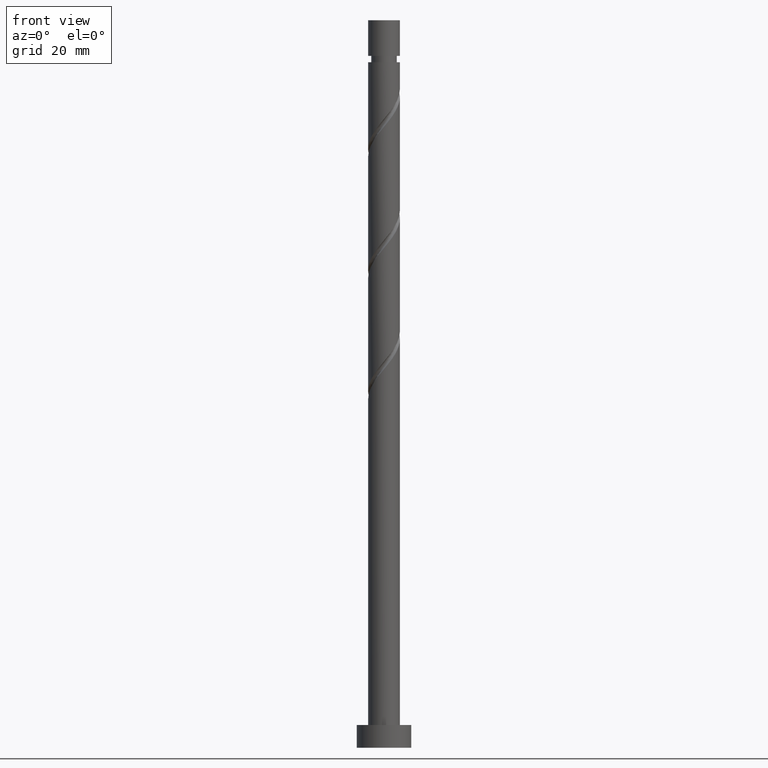
[diagram: clean part render]
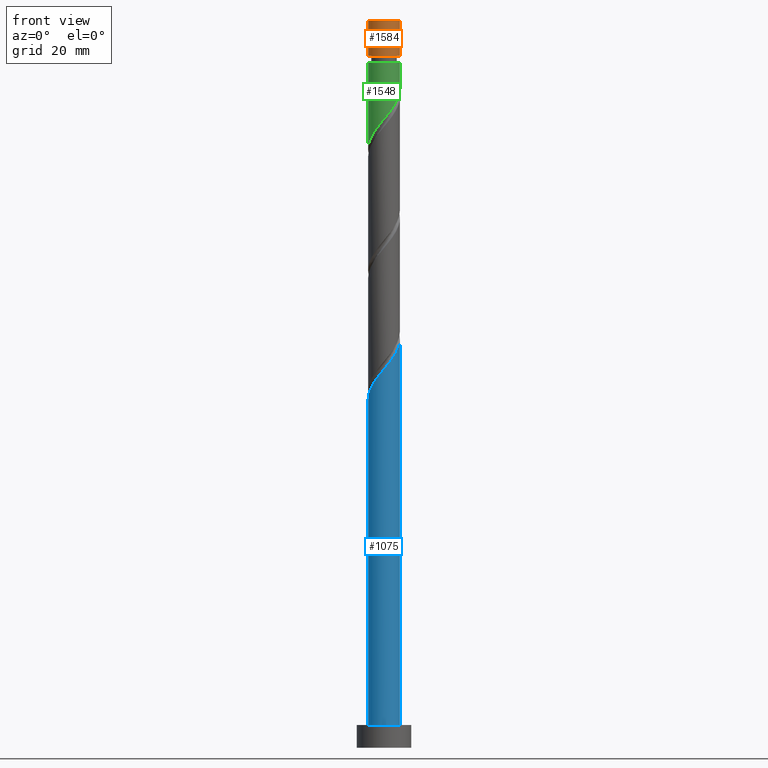
[diagram: same view with three faces highlighted in distinct colors, each labeled with its STEP entity id]
A machine part, front view with three faces highlighted in distinct colors.
Their STEP definitions:

[orange] entity #1584 — the highlighted cylindrical surface (edge-blend (fillet) strip) has radius 3.5 mm, axis along (-0, -0, -1).
#26 = VERTEX_POINT ( 'NONE', #1416 ) ;
#73 = DIRECTION ( 'NONE',  ( -0.000000000000000000, -0.000000000000000000, -1.000000000000000000 ) ) ;
#139 = DIRECTION ( 'NONE',  ( 0.000000000000000000, 0.000000000000000000, 1.000000000000000000 ) ) ;
#141 = ORIENTED_EDGE ( 'NONE', *, *, #336, .F. ) ;
#148 = DIRECTION ( 'NONE',  ( 1.000000000000000000, 0.000000000000000000, 0.000000000000000000 ) ) ;
#153 = AXIS2_PLACEMENT_3D ( 'NONE', #466, #480, #984 ) ;
#191 = VERTEX_POINT ( 'NONE', #794 ) ;
#223 = FACE_OUTER_BOUND ( 'NONE', #401, .T. ) ;
#267 = LINE ( 'NONE', #403, #314 ) ;
#277 = EDGE_CURVE ( 'NONE', #1434, #26, #567, .T. ) ;
#314 = VECTOR ( 'NONE', #1091, 1000.000000000000000 ) ;
#323 = VERTEX_POINT ( 'NONE', #1581 ) ;
#336 = EDGE_CURVE ( 'NONE', #323, #191, #267, .T. ) ;
#394 = CARTESIAN_POINT ( 'NONE',  ( -3.500000000000000000, 0.000000000000000000, 160.0000000000000000 ) ) ;
#401 = EDGE_LOOP ( 'NONE', ( #141, #456, #569, #1063 ) ) ;
#403 = CARTESIAN_POINT ( 'NONE',  ( 3.500000000000000000, 4.286263797015736595E-16, 160.0000000000000000 ) ) ;
#413 = EDGE_CURVE ( 'NONE', #191, #26, #1061, .T. ) ;
#456 = ORIENTED_EDGE ( 'NONE', *, *, #999, .F. ) ;
#466 = CARTESIAN_POINT ( 'NONE',  ( 0.000000000000000000, 0.000000000000000000, 160.0000000000000000 ) ) ;
#480 = DIRECTION ( 'NONE',  ( -0.000000000000000000, -0.000000000000000000, -1.000000000000000000 ) ) ;
#524 = DIRECTION ( 'NONE',  ( -0.000000000000000000, -0.000000000000000000, -1.000000000000000000 ) ) ;
#567 = LINE ( 'NONE', #394, #871 ) ;
#569 = ORIENTED_EDGE ( 'NONE', *, *, #277, .T. ) ;
#577 = CARTESIAN_POINT ( 'NONE',  ( 0.000000000000000000, 0.000000000000000000, 152.1742673228375224 ) ) ;
#594 = CARTESIAN_POINT ( 'NONE',  ( -3.500000000000000000, 0.000000000000000000, 160.0000000000000000 ) ) ;
#738 = AXIS2_PLACEMENT_3D ( 'NONE', #1315, #139, #148 ) ;
#761 = AXIS2_PLACEMENT_3D ( 'NONE', #577, #73, #1245 ) ;
#794 = CARTESIAN_POINT ( 'NONE',  ( 3.499999999999993783, 4.286263797015732651E-16, 152.1742673228375224 ) ) ;
#871 = VECTOR ( 'NONE', #524, 1000.000000000000000 ) ;
#984 = DIRECTION ( 'NONE',  ( -1.000000000000000000, 0.000000000000000000, 0.000000000000000000 ) ) ;
#999 = EDGE_CURVE ( 'NONE', #1434, #323, #1242, .T. ) ;
#1061 = CIRCLE ( 'NONE', #761, 3.499999999999993783 ) ;
#1063 = ORIENTED_EDGE ( 'NONE', *, *, #413, .F. ) ;
#1091 = DIRECTION ( 'NONE',  ( -0.000000000000000000, -0.000000000000000000, -1.000000000000000000 ) ) ;
#1242 = CIRCLE ( 'NONE', #738, 3.500000000000000000 ) ;
#1245 = DIRECTION ( 'NONE',  ( -1.000000000000000000, 0.000000000000000000, 0.000000000000000000 ) ) ;
#1315 = CARTESIAN_POINT ( 'NONE',  ( 0.000000000000000000, 0.000000000000000000, 160.0000000000000000 ) ) ;
#1373 = CYLINDRICAL_SURFACE ( 'NONE', #153, 3.500000000000000000 ) ;
#1416 = CARTESIAN_POINT ( 'NONE',  ( -3.499999999999993783, 0.000000000000000000, 152.1742673228375224 ) ) ;
#1434 = VERTEX_POINT ( 'NONE', #594 ) ;
#1581 = CARTESIAN_POINT ( 'NONE',  ( 3.500000000000000000, 4.286263797015736595E-16, 160.0000000000000000 ) ) ;
#1584 = ADVANCED_FACE ( 'NONE', ( #223 ), #1373, .T. ) ;

[blue] entity #1075 — the highlighted cylindrical surface (edge-blend (fillet) strip) has radius 3.5 mm, axis along (-0, -0, -1).
#21 = LINE ( 'NONE', #39, #1035 ) ;
#27 = CARTESIAN_POINT ( 'NONE',  ( 0.000000000000000000, 0.000000000000000000, 160.0000000000000000 ) ) ;
#39 = CARTESIAN_POINT ( 'NONE',  ( -3.500000000000000000, 0.000000000000000000, 160.0000000000000000 ) ) ;
#95 = CARTESIAN_POINT ( 'NONE',  ( 1.634621088283054080, -3.094836651220926438, 85.31972186829203508 ) ) ;
#104 = CARTESIAN_POINT ( 'NONE',  ( 3.500000000000005329, -0.4008512458479296381, 89.43885289056527199 ) ) ;
#171 = DIRECTION ( 'NONE',  ( 0.000000000000000000, 0.000000000000000000, 1.000000000000000000 ) ) ;
#183 = EDGE_CURVE ( 'NONE', #1474, #952, #552, .T. ) ;
#225 = CARTESIAN_POINT ( 'NONE',  ( 0.6964912059746342088, -3.430000000000004601, 84.10760065617081693 ) ) ;
#245 = EDGE_CURVE ( 'NONE', #1508, #1474, #21, .T. ) ;
#275 = DIRECTION ( 'NONE',  ( 1.000000000000000000, 0.000000000000000000, 0.000000000000000000 ) ) ;
#301 = ORIENTED_EDGE ( 'NONE', *, *, #245, .T. ) ;
#313 = VERTEX_POINT ( 'NONE', #1058 ) ;
#338 = CARTESIAN_POINT ( 'NONE',  ( 3.409370647451654968, -0.7913228091588905277, 88.95608550465567532 ) ) ;
#347 = CARTESIAN_POINT ( 'NONE',  ( -2.534748123757052163, -2.465418092830388375, 79.86517641374659604 ) ) ;
#352 = CARTESIAN_POINT ( 'NONE',  ( -3.494208578988649894, -0.2012620344778339176, 76.83487338344353645 ) ) ;
#361 = CARTESIAN_POINT ( 'NONE',  ( 2.079591422188716621, -2.859813619819381980, 85.92578247435265837 ) ) ;
#443 = LINE ( 'NONE', #957, #1655 ) ;
#518 =( BOUNDED_CURVE ( )  B_SPLINE_CURVE ( 2, ( #1606, #959, #352, #1631, #863, #601, #1377, #347, #715, #1389, #1496, #725, #858, #990, #225, #1638, #95, #361, #869, #1112, #978, #615, #338, #104, #1397 ),
 .UNSPECIFIED., .F., .T. ) 
 B_SPLINE_CURVE_WITH_KNOTS ( ( 3, 2, 2, 2, 2, 2, 2, 2, 2, 2, 2, 2, 3 ),
 ( 0.05452521624175145354, 0.05681818181818176772, 0.06818181818181823228, 0.07954545454545458583, 0.09090909090909093937, 0.1022727272727272929, 0.1136363636363636465, 0.1250000000000000000, 0.1363636363636363535, 0.1477272727272727071, 0.1590909090909090606, 0.1704545454545454142, 0.1795252162417513286 ),
 .UNSPECIFIED. ) 
 CURVE ( )  GEOMETRIC_REPRESENTATION_ITEM ( )  RATIONAL_B_SPLINE_CURVE ( ( 0.9061101570135636774, 0.9072237824201458967, 0.9090909090909231605, 0.8998376744372253988, 0.9090909090909231605, 0.8998376744372253988, 0.9090909090909231605, 0.8998376744372253988, 0.9090909090909231605, 0.8998376744372253988, 0.9090909090909231605, 0.8998376744372253988, 0.9090909090909231605, 0.8998376744372253988, 0.9090909090909231605, 0.8998376744372253988, 0.9090909090909231605, 0.8998376744372253988, 0.9090909090909231605, 0.8998376744372253988, 0.9090909090909231605, 0.8998376744372253988, 0.9090909090909231605, 0.9017048011080028846, 0.9061101570135635663 ) ) 
 REPRESENTATION_ITEM ( '' )  );
#552 = CIRCLE ( 'NONE', #1265, 3.500000000000000000 ) ;
#555 = ORIENTED_EDGE ( 'NONE', *, *, #1279, .F. ) ;
#575 = EDGE_LOOP ( 'NONE', ( #555, #1227, #301, #967 ) ) ;
#585 = AXIS2_PLACEMENT_3D ( 'NONE', #27, #752, #1015 ) ;
#601 = CARTESIAN_POINT ( 'NONE',  ( -3.126661557603648944, -1.651430267237721239, 78.65305520162536368 ) ) ;
#615 = CARTESIAN_POINT ( 'NONE',  ( 3.295595603951480879, -1.281516304446027377, 88.35002489859503783 ) ) ;
#653 = CARTESIAN_POINT ( 'NONE',  ( -3.500000000000000000, 0.000000000000000000, 5.000000000000000000 ) ) ;
#715 = CARTESIAN_POINT ( 'NONE',  ( -2.136116297704123923, -2.772545249889144525, 80.47123701980717669 ) ) ;
#725 = CARTESIAN_POINT ( 'NONE',  ( -0.7994601608701867868, -3.444429978171531737, 82.28941883798901813 ) ) ;
#752 = DIRECTION ( 'NONE',  ( -0.000000000000000000, -0.000000000000000000, -1.000000000000000000 ) ) ;
#791 = EDGE_CURVE ( 'NONE', #1508, #313, #518, .T. ) ;
#858 = CARTESIAN_POINT ( 'NONE',  ( -0.2980642516491556204, -3.487285147774535243, 82.89547944404961299 ) ) ;
#863 = CARTESIAN_POINT ( 'NONE',  ( -3.295966512314560060, -1.177541825032570877, 78.04699459556476882 ) ) ;
#869 = CARTESIAN_POINT ( 'NONE',  ( 2.440323691484713731, -2.508948042662193956, 86.53184308041322481 ) ) ;
#952 = VERTEX_POINT ( 'NONE', #1546 ) ;
#957 = CARTESIAN_POINT ( 'NONE',  ( 3.500000000000000000, 4.286263797015736595E-16, 160.0000000000000000 ) ) ;
#959 = CARTESIAN_POINT ( 'NONE',  ( -3.500000000000003997, -0.1007143428333848734, 76.71357751492148225 ) ) ;
#967 = ORIENTED_EDGE ( 'NONE', *, *, #183, .T. ) ;
#978 = CARTESIAN_POINT ( 'NONE',  ( 3.048325782366095194, -1.719799384975517542, 87.74396429253444296 ) ) ;
#990 = CARTESIAN_POINT ( 'NONE',  ( 0.2033316575718754626, -3.530140317377540082, 83.50154005011020786 ) ) ;
#1015 = DIRECTION ( 'NONE',  ( -1.000000000000000000, 0.000000000000000000, 0.000000000000000000 ) ) ;
#1035 = VECTOR ( 'NONE', #1347, 1000.000000000000000 ) ;
#1058 = CARTESIAN_POINT ( 'NONE',  ( 3.500000000000004885, 1.929429870751030982E-15, 89.92481284353658566 ) ) ;
#1075 = ADVANCED_FACE ( 'NONE', ( #1537 ), #1565, .T. ) ;
#1112 = CARTESIAN_POINT ( 'NONE',  ( 2.801055960780711729, -2.158082465505006819, 87.13790368647386231 ) ) ;
#1227 = ORIENTED_EDGE ( 'NONE', *, *, #791, .F. ) ;
#1265 = AXIS2_PLACEMENT_3D ( 'NONE', #1335, #171, #275 ) ;
#1279 = EDGE_CURVE ( 'NONE', #313, #952, #443, .T. ) ;
#1335 = CARTESIAN_POINT ( 'NONE',  ( 0.000000000000000000, 0.000000000000000000, 5.000000000000000000 ) ) ;
#1347 = DIRECTION ( 'NONE',  ( -0.000000000000000000, -0.000000000000000000, -1.000000000000000000 ) ) ;
#1377 = CARTESIAN_POINT ( 'NONE',  ( -2.830704840680350554, -2.058424180034053919, 79.25911580768597275 ) ) ;
#1389 = CARTESIAN_POINT ( 'NONE',  ( -1.737484471651196571, -3.079672406947902896, 81.07729762586779998 ) ) ;
#1397 = CARTESIAN_POINT ( 'NONE',  ( 3.500000000000004885, 1.929429870751030982E-15, 89.92481284353657145 ) ) ;
#1417 = CARTESIAN_POINT ( 'NONE',  ( -3.500000000000004885, -2.093954898489490658E-15, 76.59147951020327127 ) ) ;
#1462 = DIRECTION ( 'NONE',  ( -0.000000000000000000, -0.000000000000000000, -1.000000000000000000 ) ) ;
#1474 = VERTEX_POINT ( 'NONE', #653 ) ;
#1496 = CARTESIAN_POINT ( 'NONE',  ( -1.268472316260691901, -3.262051192559717538, 81.68335823192840905 ) ) ;
#1508 = VERTEX_POINT ( 'NONE', #1417 ) ;
#1537 = FACE_OUTER_BOUND ( 'NONE', #575, .T. ) ;
#1546 = CARTESIAN_POINT ( 'NONE',  ( 3.500000000000000000, 4.286263797015736595E-16, 5.000000000000000000 ) ) ;
#1565 = CYLINDRICAL_SURFACE ( 'NONE', #585, 3.500000000000000000 ) ;
#1606 = CARTESIAN_POINT ( 'NONE',  ( -3.500000000000004441, -2.093954898489490658E-15, 76.59147951020328549 ) ) ;
#1631 = CARTESIAN_POINT ( 'NONE',  ( -3.465271467025468954, -0.7036533828274216251, 77.44093398950417395 ) ) ;
#1638 = CARTESIAN_POINT ( 'NONE',  ( 1.189650754377393538, -3.329859682622472228, 84.71366126223144022 ) ) ;
#1655 = VECTOR ( 'NONE', #1462, 1000.000000000000000 ) ;

[green] entity #1548 — the highlighted cylindrical surface (edge-blend (fillet) strip) has radius 3.5 mm, axis along (-0, -0, -1).
#28 = EDGE_LOOP ( 'NONE', ( #159, #692, #1332, #1212 ) ) ;
#54 = DIRECTION ( 'NONE',  ( -0.000000000000000000, -0.000000000000000000, -1.000000000000000000 ) ) ;
#77 = CARTESIAN_POINT ( 'NONE',  ( 0.7994601608701855655, -3.444429978171526852, 139.2591158076860154 ) ) ;
#102 = CARTESIAN_POINT ( 'NONE',  ( 1.737484471651192131, -3.079672406947899344, 140.4712370198071767 ) ) ;
#115 = CARTESIAN_POINT ( 'NONE',  ( -3.500000000000000444, -1.809775305123072608E-15, 131.6237218021383910 ) ) ;
#123 = EDGE_CURVE ( 'NONE', #675, #948, #945, .T. ) ;
#136 = CARTESIAN_POINT ( 'NONE',  ( -3.295595603951475105, -1.281516304446025156, 133.1985097470799246 ) ) ;
#145 = CARTESIAN_POINT ( 'NONE',  ( -3.500000000000000444, -0.4008512458479260299, 132.1096817551096763 ) ) ;
#159 = ORIENTED_EDGE ( 'NONE', *, *, #123, .F. ) ;
#165 = DIRECTION ( 'NONE',  ( -0.000000000000000000, -0.000000000000000000, -1.000000000000000000 ) ) ;
#199 = CARTESIAN_POINT ( 'NONE',  ( 3.295966512314554286, -1.177541825032570655, 143.5015400501102079 ) ) ;
#210 = CARTESIAN_POINT ( 'NONE',  ( -1.189650754377393094, -3.329859682622465566, 136.8348733834435507 ) ) ;
#260 = FACE_OUTER_BOUND ( 'NONE', #28, .T. ) ;
#326 = CARTESIAN_POINT ( 'NONE',  ( 2.534748123757049498, -2.465418092830384378, 141.6833582319283948 ) ) ;
#349 = CARTESIAN_POINT ( 'NONE',  ( 0.000000000000000000, 0.000000000000000000, 150.7742673228374883 ) ) ;
#360 = CARTESIAN_POINT ( 'NONE',  ( 3.494208578988645009, -0.2012620344778351111, 144.7136612622313976 ) ) ;
#369 = CARTESIAN_POINT ( 'NONE',  ( 3.499999999999993783, 4.286263797015732158E-16, 150.7742673228374883 ) ) ;
#494 = EDGE_CURVE ( 'NONE', #675, #867, #1472, .T. ) ;
#589 = CARTESIAN_POINT ( 'NONE',  ( 0.2980642516491536220, -3.487285147774530802, 138.6530552016253921 ) ) ;
#598 = DIRECTION ( 'NONE',  ( -1.000000000000000000, 0.000000000000000000, 0.000000000000000000 ) ) ;
#600 = CARTESIAN_POINT ( 'NONE',  ( -1.634621088283053414, -3.094836651220921553, 136.2288127773829274 ) ) ;
#619 = CARTESIAN_POINT ( 'NONE',  ( -3.500000000000000444, -1.809775305123072608E-15, 131.6237218021383910 ) ) ;
#663 = VERTEX_POINT ( 'NONE', #619 ) ;
#675 = VERTEX_POINT ( 'NONE', #369 ) ;
#692 = ORIENTED_EDGE ( 'NONE', *, *, #494, .T. ) ;
#713 = CARTESIAN_POINT ( 'NONE',  ( 3.126661557603643171, -1.651430267237719018, 142.8954794440496414 ) ) ;
#746 = CARTESIAN_POINT ( 'NONE',  ( -3.499999999999993783, 0.000000000000000000, 150.7742673228374883 ) ) ;
#773 = CYLINDRICAL_SURFACE ( 'NONE', #1442, 3.500000000000000000 ) ;
#856 = CARTESIAN_POINT ( 'NONE',  ( 3.500000000000000444, 1.121761552762235337E-15, 144.9570551354716770 ) ) ;
#867 = VERTEX_POINT ( 'NONE', #746 ) ;
#868 = CARTESIAN_POINT ( 'NONE',  ( 3.465271467025464069, -0.7036533828274222913, 144.1076006561708880 ) ) ;
#899 = VECTOR ( 'NONE', #1369, 1000.000000000000000 ) ;
#945 = LINE ( 'NONE', #1318, #1523 ) ;
#948 = VERTEX_POINT ( 'NONE', #1522 ) ;
#985 = CARTESIAN_POINT ( 'NONE',  ( -3.500000000000000000, 0.000000000000000000, 160.0000000000000000 ) ) ;
#1019 = CARTESIAN_POINT ( 'NONE',  ( -3.409370647451650083, -0.7913228091588887514, 132.5924491410193014 ) ) ;
#1053 = DIRECTION ( 'NONE',  ( -1.000000000000000000, 0.000000000000000000, 0.000000000000000000 ) ) ;
#1110 = CARTESIAN_POINT ( 'NONE',  ( -0.2033316575718766839, -3.530140317377535197, 138.0469945955647404 ) ) ;
#1115 = DIRECTION ( 'NONE',  ( -0.000000000000000000, -0.000000000000000000, -1.000000000000000000 ) ) ;
#1123 = CARTESIAN_POINT ( 'NONE',  ( -2.801055960780707732, -2.158082465505001935, 134.4106309592011144 ) ) ;
#1212 = ORIENTED_EDGE ( 'NONE', *, *, #1456, .F. ) ;
#1240 = CARTESIAN_POINT ( 'NONE',  ( 2.136116297704119482, -2.772545249889141861, 141.0772976258678284 ) ) ;
#1246 = CARTESIAN_POINT ( 'NONE',  ( -2.079591422188713512, -2.859813619819377095, 135.6227521713223325 ) ) ;
#1271 = CARTESIAN_POINT ( 'NONE',  ( 1.268472316260688793, -3.262051192559713098, 139.8651764137466387 ) ) ;
#1313 = CARTESIAN_POINT ( 'NONE',  ( -3.048325782366091641, -1.719799384975513767, 133.8045703531405763 ) ) ;
#1318 = CARTESIAN_POINT ( 'NONE',  ( 3.500000000000000000, 4.286263797015736595E-16, 160.0000000000000000 ) ) ;
#1332 = ORIENTED_EDGE ( 'NONE', *, *, #1446, .T. ) ;
#1369 = DIRECTION ( 'NONE',  ( -0.000000000000000000, -0.000000000000000000, -1.000000000000000000 ) ) ;
#1442 = AXIS2_PLACEMENT_3D ( 'NONE', #1451, #165, #1053 ) ;
#1446 = EDGE_CURVE ( 'NONE', #867, #663, #1502, .T. ) ;
#1451 = CARTESIAN_POINT ( 'NONE',  ( 0.000000000000000000, 0.000000000000000000, 160.0000000000000000 ) ) ;
#1456 = EDGE_CURVE ( 'NONE', #948, #663, #1586, .T. ) ;
#1472 = CIRCLE ( 'NONE', #1579, 3.499999999999993783 ) ;
#1486 = CARTESIAN_POINT ( 'NONE',  ( 2.830704840680345669, -2.058424180034052142, 142.2894188379890466 ) ) ;
#1502 = LINE ( 'NONE', #985, #899 ) ;
#1509 = CARTESIAN_POINT ( 'NONE',  ( -0.6964912059746347639, -3.430000000000000604, 137.4409339895041740 ) ) ;
#1514 = CARTESIAN_POINT ( 'NONE',  ( 3.500000000000000444, -0.1007143428333686502, 144.8349571307534518 ) ) ;
#1522 = CARTESIAN_POINT ( 'NONE',  ( 3.500000000000000444, 1.121761552762235337E-15, 144.9570551354716770 ) ) ;
#1523 = VECTOR ( 'NONE', #54, 1000.000000000000000 ) ;
#1548 = ADVANCED_FACE ( 'NONE', ( #260 ), #773, .T. ) ;
#1579 = AXIS2_PLACEMENT_3D ( 'NONE', #349, #1115, #598 ) ;
#1586 =( BOUNDED_CURVE ( )  B_SPLINE_CURVE ( 2, ( #856, #1514, #360, #868, #199, #713, #1486, #326, #1240, #102, #1271, #77, #589, #1110, #1509, #210, #600, #1246, #1630, #1123, #1313, #136, #1019, #145, #115 ),
 .UNSPECIFIED., .F., .T. ) 
 B_SPLINE_CURVE_WITH_KNOTS ( ( 3, 2, 2, 2, 2, 2, 2, 2, 2, 2, 2, 2, 3 ),
 ( 0.3045252162417511066, 0.3068181818181818232, 0.3181818181818181768, 0.3295454545454545303, 0.3409090909090908839, 0.3522727272727272929, 0.3636363636363636465, 0.3750000000000000000, 0.3863636363636363535, 0.3977272727272727071, 0.4090909090909091161, 0.4204545454545454697, 0.4295252162417514397 ),
 .UNSPECIFIED. ) 
 CURVE ( )  GEOMETRIC_REPRESENTATION_ITEM ( )  RATIONAL_B_SPLINE_CURVE ( ( 0.9061101570135567940, 0.9072237824201390133, 0.9090909090909166101, 0.8998376744372190705, 0.9090909090909166101, 0.8998376744372190705, 0.9090909090909166101, 0.8998376744372190705, 0.9090909090909166101, 0.8998376744372190705, 0.9090909090909166101, 0.8998376744372190705, 0.9090909090909166101, 0.8998376744372190705, 0.9090909090909166101, 0.8998376744372190705, 0.9090909090909166101, 0.8998376744372190705, 0.9090909090909166101, 0.8998376744372190705, 0.9090909090909166101, 0.8998376744372190705, 0.9090909090909166101, 0.9017048011079964454, 0.9061101570135570160 ) ) 
 REPRESENTATION_ITEM ( '' )  );
#1630 = CARTESIAN_POINT ( 'NONE',  ( -2.440323691484712398, -2.508948042662189515, 135.0166915652617377 ) ) ;